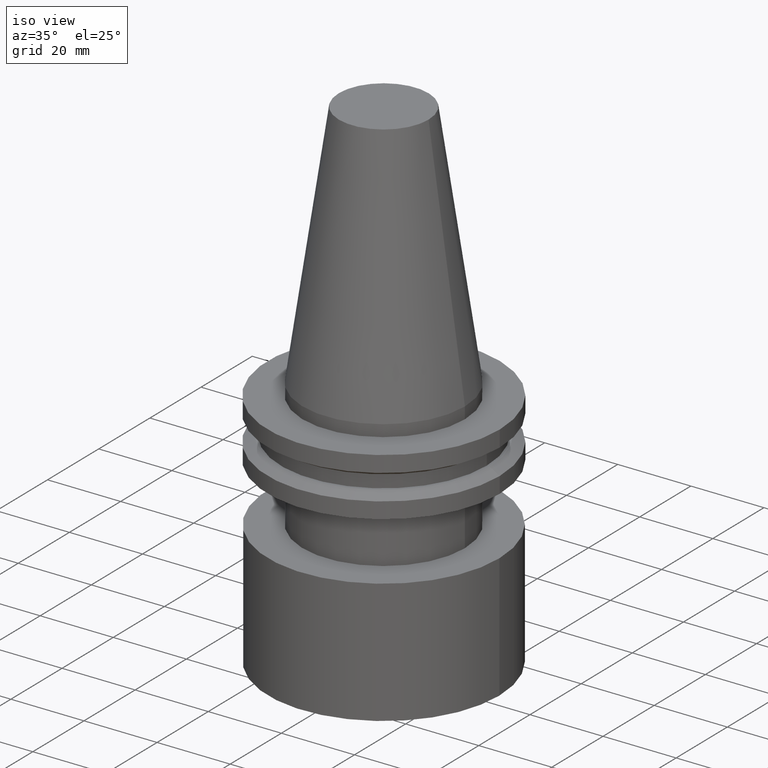
[diagram: clean part render]
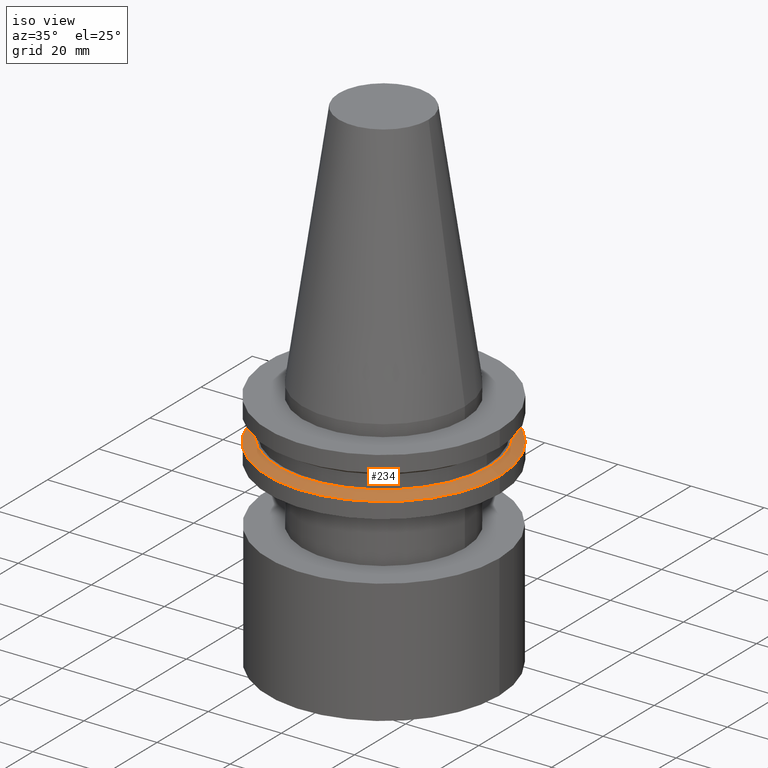
[diagram: same view with one face highlighted and labeled with its STEP entity id]
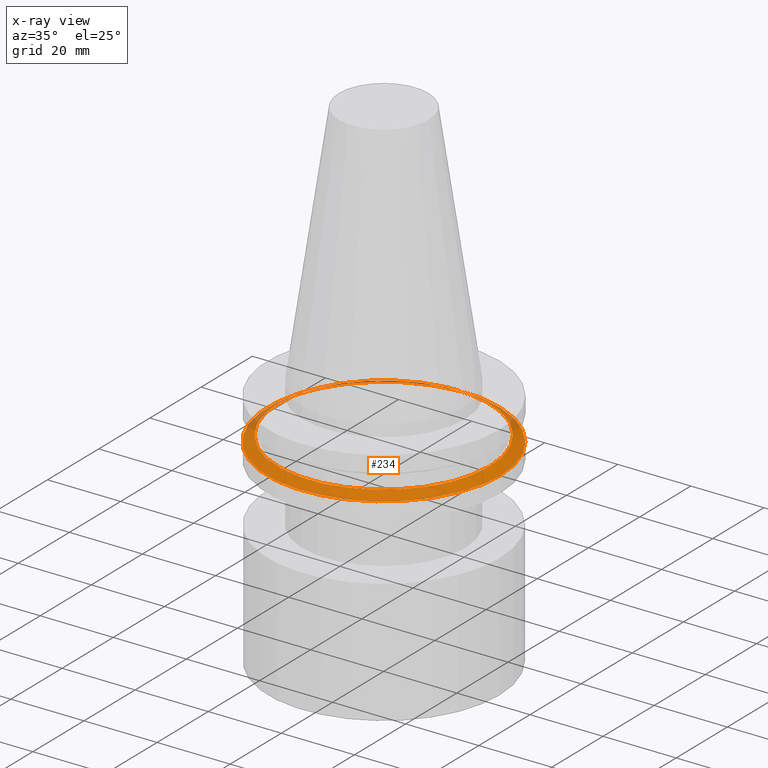
[diagram: x-ray of the same camera — body ghosted, the highlighted face saturated]
A machine part, iso view. The second image highlights one B-rep face of the part: STEP entity #234.
The next image is the same camera in x-ray: the body ghosted, the highlighted face saturated — about 12% of this face is hidden behind the body in this view.
In plain terms, the highlighted conical surface has half-angle 60 deg.
Its self-contained STEP definition (entity closure, byte-faithful):
#1 = ORIENTED_EDGE ( 'NONE', *, *, #369, .T. ) ;
#18 = CARTESIAN_POINT ( 'NONE',  ( 0.000000000000000000, 0.000000000000000000, -14.65472339340266572 ) ) ;
#33 = AXIS2_PLACEMENT_3D ( 'NONE', #18, #45, #160 ) ;
#45 = DIRECTION ( 'NONE',  ( 0.000000000000000000, 0.000000000000000000, -1.000000000000000000 ) ) ;
#49 = DIRECTION ( 'NONE',  ( 1.000000000000000000, 0.000000000000000000, 0.000000000000000000 ) ) ;
#75 = FACE_BOUND ( 'NONE', #122, .T. ) ;
#97 = EDGE_LOOP ( 'NONE', ( #1 ) ) ;
#101 = DIRECTION ( 'NONE',  ( -0.000000000000000000, -0.000000000000000000, 1.000000000000000000 ) ) ;
#115 = DIRECTION ( 'NONE',  ( 1.000000000000000000, 0.000000000000000000, 0.000000000000000000 ) ) ;
#122 = EDGE_LOOP ( 'NONE', ( #201 ) ) ;
#124 = VERTEX_POINT ( 'NONE', #243 ) ;
#138 = AXIS2_PLACEMENT_3D ( 'NONE', #321, #101, #49 ) ;
#160 = DIRECTION ( 'NONE',  ( -1.000000000000000000, 0.000000000000000000, 0.000000000000000000 ) ) ;
#190 = CIRCLE ( 'NONE', #206, 31.75000000000000000 ) ;
#201 = ORIENTED_EDGE ( 'NONE', *, *, #281, .F. ) ;
#206 = AXIS2_PLACEMENT_3D ( 'NONE', #395, #268, #115 ) ;
#212 = CARTESIAN_POINT ( 'NONE',  ( 31.75000000000000000, 0.000000000000000000, -14.65472339340266572 ) ) ;
#227 = FACE_OUTER_BOUND ( 'NONE', #97, .T. ) ;
#234 = ADVANCED_FACE ( 'NONE', ( #75, #227 ), #271, .T. ) ;
#240 = CIRCLE ( 'NONE', #138, 28.97919780457008088 ) ;
#243 = CARTESIAN_POINT ( 'NONE',  ( 28.97919780457008088, 0.000000000000000000, -13.05499999999999794 ) ) ;
#268 = DIRECTION ( 'NONE',  ( -0.000000000000000000, -0.000000000000000000, 1.000000000000000000 ) ) ;
#271 = CONICAL_SURFACE ( 'NONE', #33, 31.75000000000000000, 1.047197551196597853 ) ;
#281 = EDGE_CURVE ( 'NONE', #124, #124, #240, .T. ) ;
#321 = CARTESIAN_POINT ( 'NONE',  ( 0.000000000000000000, 0.000000000000000000, -13.05499999999999794 ) ) ;
#367 = VERTEX_POINT ( 'NONE', #212 ) ;
#369 = EDGE_CURVE ( 'NONE', #367, #367, #190, .T. ) ;
#395 = CARTESIAN_POINT ( 'NONE',  ( 0.000000000000000000, 0.000000000000000000, -14.65472339340266572 ) ) ;